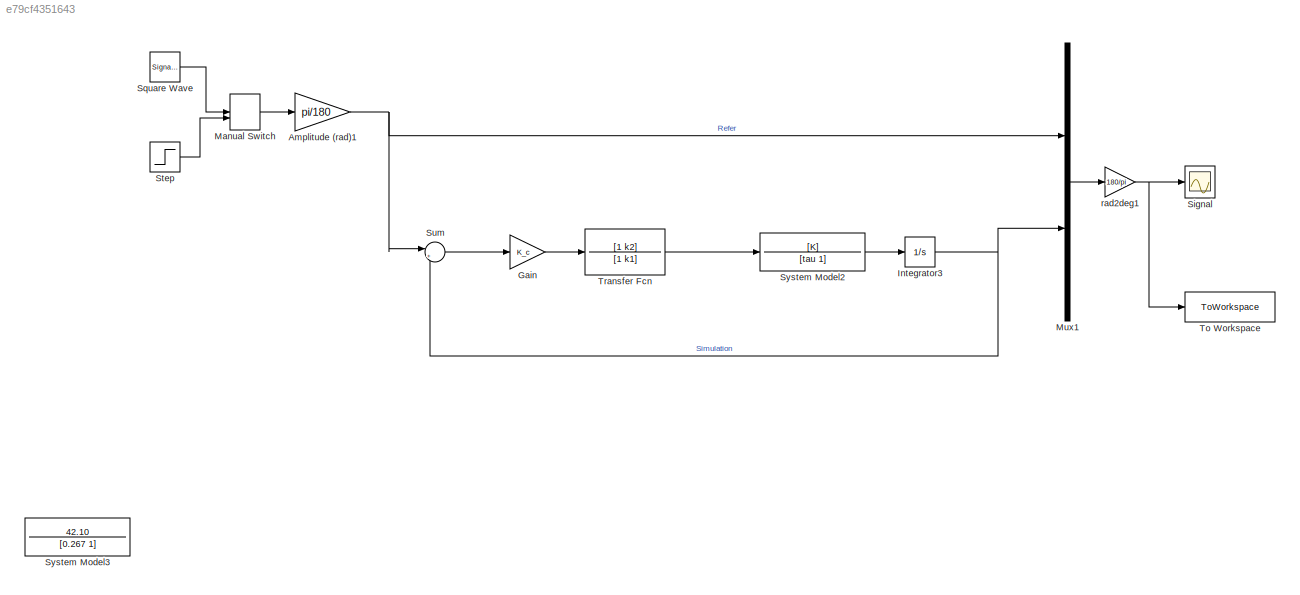
MODEL slx_e79cf4351643
KIND model
CONFIG AbsTol = auto
CONFIG EnableMultiTasking = off
CONFIG FixedStep = auto
CONFIG MaxStep = auto
CONFIG MinStep = auto
CONFIG RelTol = 1e-3
CONFIG SampleTimeConstraint = Unconstrained
CONFIG SolverName = VariableStepAuto
CONFIG StartTime = 0.0
CONFIG StopTime = 20
BLOCK [Gain] Amplitude (rad)1
  Gain = pi/180
BLOCK [Gain] Gain
  Gain = K_c
BLOCK [Integrator] Integrator3
BLOCK [ManualSwitch] Manual Switch
BLOCK [Mux] Mux1
  DisplayOption = bar
  Inputs = 2
BLOCK [Scope] Signal
  ActiveDisplayYMaximum = 99.850321227035678
  ActiveDisplayYMinimum = -153.10943251525291
  DataLogging = on
  DataLoggingDecimateData = on
  DataLoggingDecimation = 1
  DataLoggingLimitDataPoints = on
  DataLoggingMaxPoints = 25000
  DataLoggingSaveFormat = Array
  Floating = off
  GraphicalSettings = {"Style":{"BackgroundColor":[0.12941176470588237,0.12941176470588237,0.12941176470588237],"AxesColor":[0.07058823529411765,0.07058823529411765,0.07058823529411765],"LabelsColor":[0.8509803921568627,0.8509803921568627,0.8509803921568627],"PreserveColors":false,"Visible":[true,true],"LineStyle":["-","-"],"LineWidth":[1.5,1.5],"BarWidth":[0.9,0.9],"LineColor":["auto","auto"],"LineFaceAlpha":[1,1],"Li...<+2162ch>
  MultipleDisplayCache = [{"MaxYLimMag":152.67463,"MaxYLimReal":99.850321227035678,"MinYLimMag":0,"MinYLimReal":-153.10943251525291,"PlotAsMagnitudePhase":false,"ShowGrid":true,"ShowLegend":true,"Title":"%<SignalLabel>","YLabel":""}]
  NumInputPorts = 1
  ScopeFrameLocation = window
  ShowLegend = on
  TimeSpan = 20
  WasSavedAsWebScope = on
  WindowPosition = [363.000000,14.000000,860.000000,518.000000,]
BLOCK [SignalGenerator] Square Wave
  Amplitude = 45
  Frequency = 0.1
  WaveForm = square
BLOCK [Step] Step
  SampleTime = 0
BLOCK [Sum] Sum
  Inputs = |+-
BLOCK [TransferFcn] System Model2
  Denominator = [tau 1]
  Numerator = [K]
BLOCK [TransferFcn] System Model3
  Denominator = [0.267 1]
  Numerator = 42.10
BLOCK [ToWorkspace] To Workspace
  FixptAsFi = on
  MaxDataPoints = inf
  SampleTime = -1
  SaveFormat = Timeseries
  VariableName = LeadLag
BLOCK [TransferFcn] Transfer Fcn
  Denominator = [1 k1]
  Numerator = [1 k2]
BLOCK [Gain] rad2deg1
  Gain = 180/pi
NET Amplitude (rad)1:1 -> Mux1:1, Sum:1
LINE Gain:1 -> Transfer Fcn:1
NET Integrator3:1 -> Mux1:2, Sum:2
LINE Manual Switch:1 -> Amplitude (rad)1:1
LINE Mux1:1 -> rad2deg1:1
LINE Square Wave:1 -> Manual Switch:1
LINE Step:1 -> Manual Switch:2
LINE Sum:1 -> Gain:1
LINE System Model2:1 -> Integrator3:1
LINE Transfer Fcn:1 -> System Model2:1
NET rad2deg1:1 -> Signal:1, To Workspace:1
note: NET lines group one-source signal fan-out (src -> all destinations, sorted); 1:1 wires keep LINE
